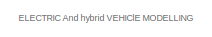
[diagram: root canvas - part 1/2, top left region]
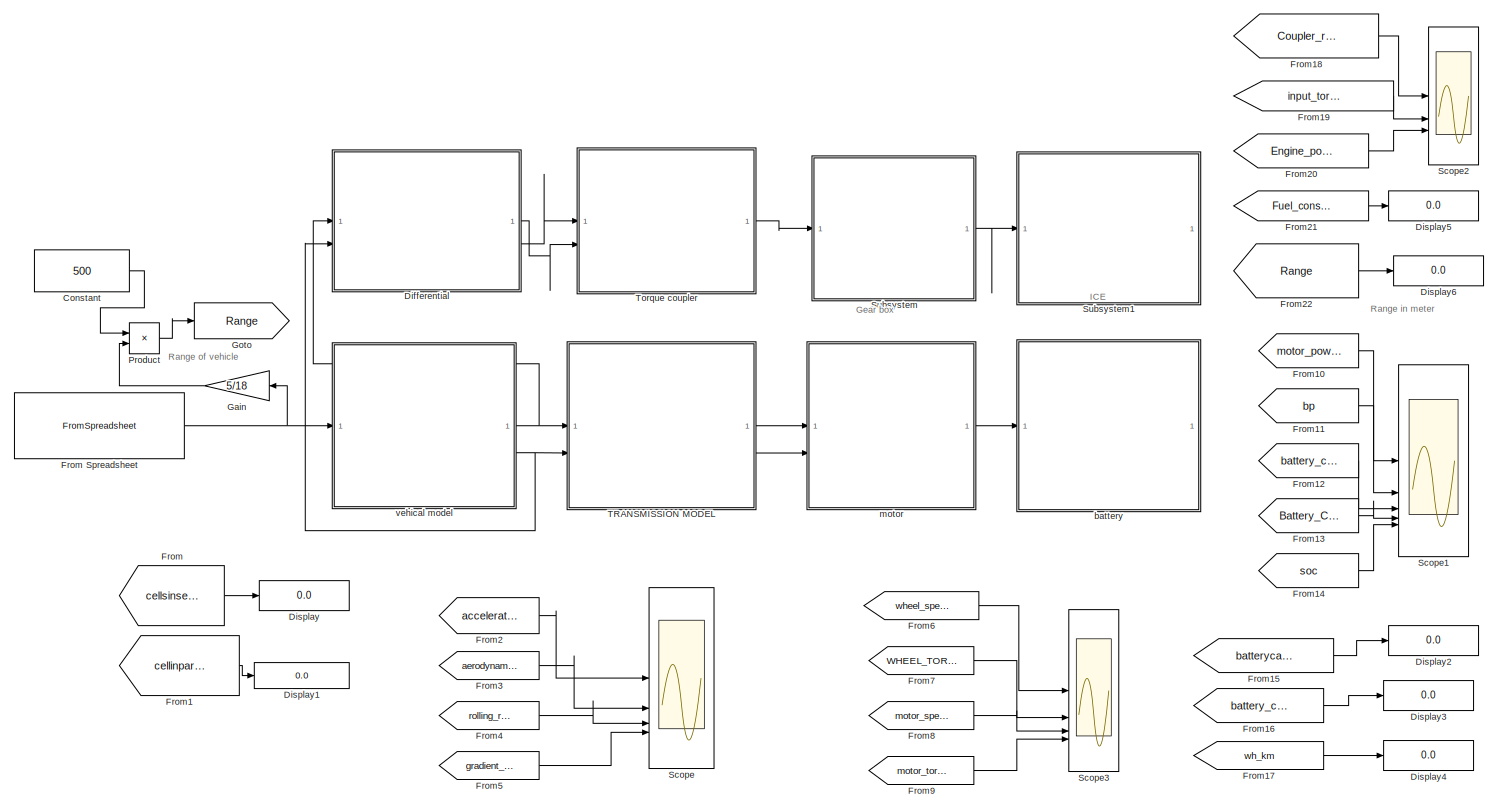
[diagram: root canvas - part 2/2, most of the canvas]
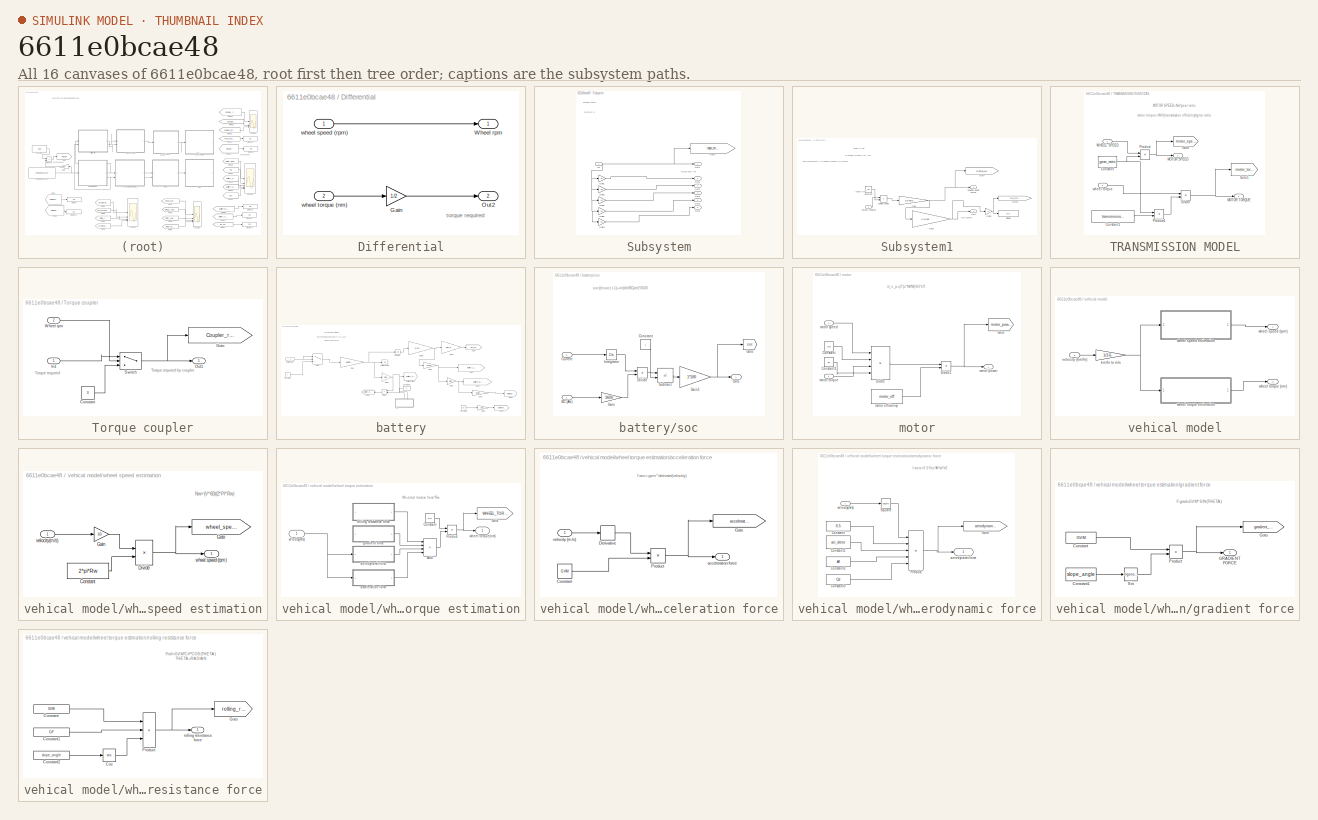
[diagram: thumbnail index - all 16 canvases of the model, root first then tree order]
MODEL slx_6611e0bcae48
KIND model
CONFIG AbsTol = auto
CONFIG EnableMultiTasking = off
CONFIG FixedStep = auto
CONFIG MaxStep = auto
CONFIG MinStep = auto
CONFIG RelTol = 1e-3
CONFIG SampleTimeConstraint = Unconstrained
CONFIG SolverName = VariableStepAuto
CONFIG StartTime = 0.0
CONFIG StopTime = 500
WORKSPACE source: MATLAB code (in-file)
WORKSPACE Rw = 0.32
WORKSPACE GVM = 2000
WORKSPACE GVW = GVM*9.8  (= 19600)
WORKSPACE CrF = 0.014
WORKSPACE slope_angle = 0
WORKSPACE Af = 2.2
WORKSPACE Cd = 0.25
WORKSPACE gear_ratio = 9
WORKSPACE transmission_efficiency = 0.95
WORKSPACE motor_eff = 0.94
WORKSPACE motorcontroller_eff = 0.95
WORKSPACE Bv = 72
WORKSPACE Cv = 3.6
WORKSPACE cellcapacity = 25
WORKSPACE lap_distance = 0.787
WORKSPACE range = 20
WORKSPACE time = 60
WORKSPACE air_dens = 1.225
WORKSPACE We = 3000
WORKSPACE Engine_eff = 85
BLOCK [Constant] Constant
  Value = 500
BLOCK [SubSystem] Differential
BLOCK [Gain] Differential/Gain
  Gain = 1/2
BLOCK [Outport] Differential/Out2
  Port = 2
BLOCK [Outport] Differential/Wheel rpm
BLOCK [Inport] Differential/wheel speed (rpm)
BLOCK [Inport] Differential/wheel torque (nm)
  Port = 2
BLOCK [Display] Display
  Decimation = 1
BLOCK [Display] Display1
  Decimation = 1
BLOCK [Display] Display2
  Decimation = 1
BLOCK [Display] Display3
  Decimation = 1
BLOCK [Display] Display4
  Decimation = 1
BLOCK [Display] Display5
  Decimation = 1
BLOCK [Display] Display6
  Decimation = 1
BLOCK [From] From
  GotoTag = cellsinseries
  TagVisibility = global
BLOCK [FromSpreadsheet] From Spreadsheet
  FileName = Drive cycle.xlsx
BLOCK [From] From1
  GotoTag = cellinparallel
  TagVisibility = global
BLOCK [From] From10
  GotoTag = motor_power
  TagVisibility = global
BLOCK [From] From11
  GotoTag = bp
  TagVisibility = global
BLOCK [From] From12
  GotoTag = battery_current
  TagVisibility = global
BLOCK [From] From13
  GotoTag = Battery_C_rate
  TagVisibility = global
BLOCK [From] From14
  GotoTag = soc
  TagVisibility = global
BLOCK [From] From15
  GotoTag = batterycapacity_amperehour
  TagVisibility = global
BLOCK [From] From16
  GotoTag = battery_capacity_wh
  TagVisibility = global
BLOCK [From] From17
  GotoTag = wh_km
  TagVisibility = global
BLOCK [From] From18
  GotoTag = Coupler_required_torque
  TagVisibility = global
BLOCK [From] From19
  GotoTag = input_torque_required
  TagVisibility = global
BLOCK [From] From2
  GotoTag = acceleration_force
  TagVisibility = global
BLOCK [From] From20
  GotoTag = Engine_power_output
  TagVisibility = global
BLOCK [From] From21
  GotoTag = Fuel_consumption
  TagVisibility = global
BLOCK [From] From22
  GotoTag = Range
  TagVisibility = global
BLOCK [From] From3
  GotoTag = aerodynamic_force
  TagVisibility = global
BLOCK [From] From4
  GotoTag = rolling_resistance
  TagVisibility = global
BLOCK [From] From5
  GotoTag = gradient_force
  TagVisibility = global
BLOCK [From] From6
  GotoTag = wheel_speed
  TagVisibility = global
BLOCK [From] From7
  GotoTag = WHEEL_TORQUE
  TagVisibility = global
BLOCK [From] From8
  GotoTag = motor_speed
  TagVisibility = global
BLOCK [From] From9
  GotoTag = motor_torque
  TagVisibility = global
BLOCK [Gain] Gain
  Gain = 5/18
  NameLocation = top
BLOCK [Goto] Goto
  GotoTag = Range
  TagVisibility = global
BLOCK [Product] Product
BLOCK [Scope] Scope
  Floating = off
  NumInputPorts = 4
  ScopeSpecificationString = Simulink.scopes.TimeScopeBlockCfg('CurrentConfiguration', extmgr.ConfigurationSet(extmgr.Configuration('Core','General UI',true),extmgr.Configuration('Core','Source UI',true),extmgr.Configuration('Sources','WiredSimulink',true),extmgr.Configuration('Visuals','Time Domain',true,'SerializedDisplays',{struct('MinYLimReal','-6888.9465','MaxYLimReal','6453.64353','YLabelReal','','MinYLimMag','  0.00000...<+3718ch>
BLOCK [Scope] Scope1
  Floating = off
  NumInputPorts = 5
  ScopeSpecificationString = Simulink.scopes.TimeScopeBlockCfg('CurrentConfiguration', extmgr.ConfigurationSet(extmgr.Configuration('Core','General UI',true,'FigureColor',[0.992156862745098 0.917647058823529 0.796078431372549]),extmgr.Configuration('Core','Source UI',true),extmgr.Configuration('Sources','WiredSimulink',true,'DataLoggingVariableName','ScopeData1'),extmgr.Configuration('Visuals','Time Domain',true,'PlotType','L...<+5524ch>
BLOCK [Scope] Scope2
  Floating = off
  NumInputPorts = 3
  ScopeSpecificationString = Simulink.scopes.TimeScopeBlockCfg('CurrentConfiguration', extmgr.ConfigurationSet(extmgr.Configuration('Core','General UI',true),extmgr.Configuration('Core','Source UI',true),extmgr.Configuration('Sources','WiredSimulink',true,'DataLoggingVariableName','ScopeData1'),extmgr.Configuration('Visuals','Time Domain',true,'SerializedDisplays',{struct('MinYLimReal','-936.14474','MaxYLimReal','985.46448','...<+2951ch>
BLOCK [Scope] Scope3
  Floating = off
  NumInputPorts = 4
  ScopeSpecificationString = Simulink.scopes.TimeScopeBlockCfg('CurrentConfiguration', extmgr.ConfigurationSet(extmgr.Configuration('Core','General UI',true),extmgr.Configuration('Core','Source UI',true),extmgr.Configuration('Sources','WiredSimulink',true,'DataLoggingVariableName','ScopeData3'),extmgr.Configuration('Visuals','Time Domain',true,'SerializedDisplays',{struct('MinYLimReal','-212.41382','MaxYLimReal','1497.25842',...<+3762ch>
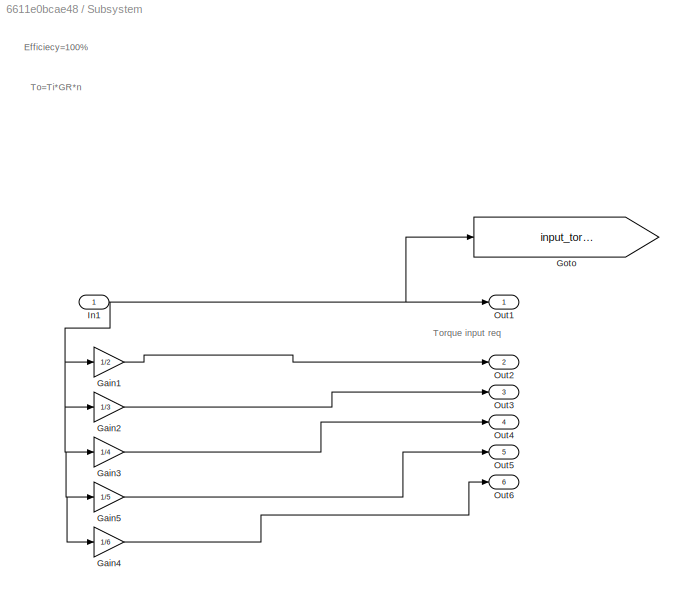
BLOCK [SubSystem] Subsystem
BLOCK [Gain] Subsystem/Gain1
  Gain = 1/2
BLOCK [Gain] Subsystem/Gain2
  Gain = 1/3
BLOCK [Gain] Subsystem/Gain3
  Gain = 1/4
BLOCK [Gain] Subsystem/Gain4
  Gain = 1/6
BLOCK [Gain] Subsystem/Gain5
  Gain = 1/5
BLOCK [Goto] Subsystem/Goto
  GotoTag = input_torque_required
  TagVisibility = global
BLOCK [Inport] Subsystem/In1
BLOCK [Outport] Subsystem/Out1
BLOCK [Outport] Subsystem/Out2
  Port = 2
BLOCK [Outport] Subsystem/Out3
  Port = 3
BLOCK [Outport] Subsystem/Out4
  Port = 4
BLOCK [Outport] Subsystem/Out5
  Port = 5
BLOCK [Outport] Subsystem/Out6
  Port = 6
BLOCK [SubSystem] Subsystem1
BLOCK [Constant] Subsystem1/Constant
  Value = We
BLOCK [Display] Subsystem1/Display
  Decimation = 1
BLOCK [Product] Subsystem1/Engine power
BLOCK [Outport] Subsystem1/Engoine power output
  Port = 2
BLOCK [Gain] Subsystem1/Gain
  Gain = 1/Engine_eff %
BLOCK [Gain] Subsystem1/Gain1
  Gain = 1/(Engine_eff*0.0122225)
BLOCK [Gain] Subsystem1/Gain2
  Gain = -1
BLOCK [Goto] Subsystem1/Goto
  GotoTag = Engine_power_output
  TagVisibility = global
BLOCK [Goto] Subsystem1/Goto1
  GotoTag = Fuel_consumption
  TagVisibility = global
BLOCK [Outport] Subsystem1/Out1
BLOCK [Inport] Subsystem1/Torque required
BLOCK [SubSystem] TRANSMISSION MODEL
BLOCK [Constant] TRANSMISSION MODEL/Constant
  Value = gear_ratio
BLOCK [Constant] TRANSMISSION MODEL/Constant1
  Value = transmission_efficiency
BLOCK [Product] TRANSMISSION MODEL/Divide
  Inputs = */
BLOCK [Goto] TRANSMISSION MODEL/Goto
  GotoTag = motor_speed
  TagVisibility = global
BLOCK [Goto] TRANSMISSION MODEL/Goto1
  GotoTag = motor_torque
  TagVisibility = global
BLOCK [Outport] TRANSMISSION MODEL/MOTOR SPEED 
BLOCK [Outport] TRANSMISSION MODEL/MOTOR TORQUE
  Port = 2
BLOCK [Product] TRANSMISSION MODEL/Product
BLOCK [Product] TRANSMISSION MODEL/Product1
BLOCK [Inport] TRANSMISSION MODEL/WHEEL SPEED
BLOCK [Inport] TRANSMISSION MODEL/wheel torque
  Port = 2
BLOCK [SubSystem] Torque coupler
BLOCK [Constant] Torque coupler/Constant
  Value = 0
BLOCK [Goto] Torque coupler/Goto
  GotoTag = Coupler_required_torque
  TagVisibility = global
BLOCK [Inport] Torque coupler/In1
BLOCK [Outport] Torque coupler/Out1
BLOCK [Switch] Torque coupler/Switch
  Criteria = u2 > Threshold
  InputSameDT = off
  SaturateOnIntegerOverflow = off
  Threshold = 20
BLOCK [Inport] Torque coupler/Wheel rpm
  Port = 2
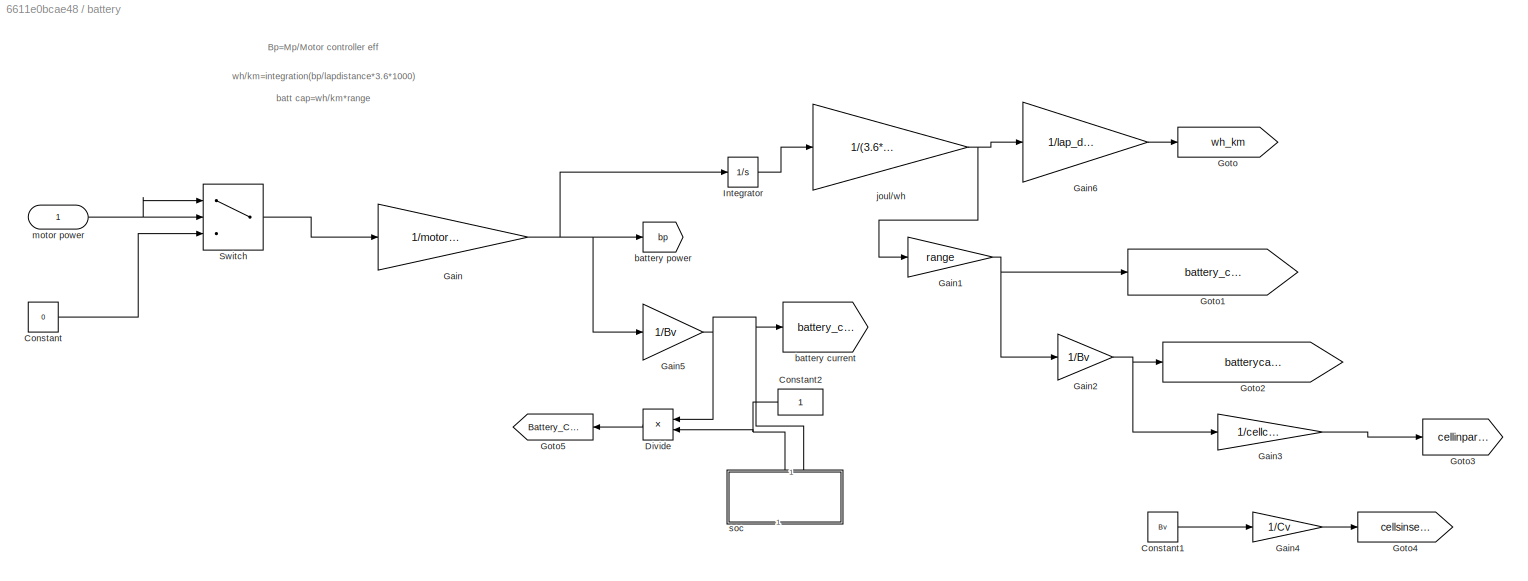
BLOCK [SubSystem] battery
BLOCK [Constant] battery/Constant
  Value = 0
BLOCK [Constant] battery/Constant1
  Value = Bv
BLOCK [Constant] battery/Constant2
  NameLocation = top
BLOCK [Product] battery/Divide
  Inputs = */
  NameLocation = top
BLOCK [Gain] battery/Gain
  Gain = 1/motorcontroller_eff
BLOCK [Gain] battery/Gain1
  Gain = range
BLOCK [Gain] battery/Gain2
  Gain = 1/Bv
BLOCK [Gain] battery/Gain3
  Gain = 1/cellcapacity
BLOCK [Gain] battery/Gain4
  Gain = 1/Cv
BLOCK [Gain] battery/Gain5
  Gain = 1/Bv
BLOCK [Gain] battery/Gain6
  Gain = 1/lap_distance
BLOCK [Goto] battery/Goto
  GotoTag = wh_km
  TagVisibility = global
BLOCK [Goto] battery/Goto1
  GotoTag = battery_capacity_wh
  TagVisibility = global
BLOCK [Goto] battery/Goto2
  GotoTag = batterycapacity_amperehour
  TagVisibility = global
BLOCK [Goto] battery/Goto3
  GotoTag = cellinparallel
  TagVisibility = global
BLOCK [Goto] battery/Goto4
  GotoTag = cellsinseries
  TagVisibility = global
BLOCK [Goto] battery/Goto5
  GotoTag = Battery_C_rate
  NameLocation = top
  TagVisibility = global
BLOCK [Integrator] battery/Integrator
BLOCK [Switch] battery/Switch
  Criteria = u2 > Threshold
  InputSameDT = off
  SaturateOnIntegerOverflow = off
BLOCK [Goto] battery/battery current
  GotoTag = battery_current
  TagVisibility = global
BLOCK [Goto] battery/battery power
  GotoTag = bp
  TagVisibility = global
BLOCK [Gain] battery/joul//wh
  Gain = 1/(3.6*1000)
BLOCK [Inport] battery/motor power
BLOCK [SubSystem] battery/soc
  NameLocation = right
  PortSchema = {"entries":[{"content":{"sides":[{"content":{},"type":"ConnectorPlacement.EquallySpacedRectSide","uuid":"525a52db-42a3-4186-9b86-1a9c3b979e09"},{"content":{"connectorIds":["In1","In2","Out1"],"side":"RIGHT"},"type":"ConnectorPlacement.EquallySpacedRectSide","uuid":"4671c8ab-09a3-4098-81cc-cb8b0c0d9d98"},{"content":{"side":"TOP"},"type":"ConnectorPlacement.EquallySpacedRectSide","uuid":"72cae99d-a4...<+212ch>
BLOCK [Inport] battery/soc/BC (Ah)
BLOCK [Constant] battery/soc/Constant
BLOCK [Inport] battery/soc/Current
  Port = 2
BLOCK [Product] battery/soc/Divide
  Inputs = */
BLOCK [Gain] battery/soc/Gain
  Gain = 3600
BLOCK [Gain] battery/soc/Gain1
  Gain = 1*100
BLOCK [Goto] battery/soc/Goto
  GotoTag = soc
  TagVisibility = global
BLOCK [Integrator] battery/soc/Integrator
BLOCK [Outport] battery/soc/Out1
BLOCK [Sum] battery/soc/Subtract
  IconShape = rectangular
  Inputs = +-
BLOCK [SubSystem] motor
BLOCK [Constant] motor/Constant
  Value = 2*pi
BLOCK [Constant] motor/Constant1
  Value = 60
BLOCK [Product] motor/Divide
  Inputs = ***/
BLOCK [Product] motor/Divide1
  Inputs = */
BLOCK [Goto] motor/Goto
  GotoTag = motor_power
  TagVisibility = global
BLOCK [Constant] motor/motor efficiency
  Value = motor_eff
BLOCK [Outport] motor/motor power
BLOCK [Inport] motor/motor speed
BLOCK [Inport] motor/motor torque
  Port = 2
BLOCK [SubSystem] vehical model
BLOCK [Gain] vehical model/km//hr to m//s
  Gain = 1/3.6
BLOCK [Inport] vehical model/velocity (km//hr)
BLOCK [Outport] vehical model/wheel speed (rpm)
BLOCK [SubSystem] vehical model/wheel speed estimation
BLOCK [Constant] vehical model/wheel speed estimation/Constant
  Value = 2*pi*Rw
BLOCK [Product] vehical model/wheel speed estimation/Divide
  Inputs = */
BLOCK [Gain] vehical model/wheel speed estimation/Gain
  Gain = 60
BLOCK [Goto] vehical model/wheel speed estimation/Goto
  GotoTag = wheel_speed
  TagVisibility = global
BLOCK [Inport] vehical model/wheel speed estimation/velocity(m//s)
BLOCK [Outport] vehical model/wheel speed estimation/wheel speed (rpm)
BLOCK [Outport] vehical model/wheel torque (nm)
  Port = 2
BLOCK [SubSystem] vehical model/wheel torque estimation
BLOCK [Sum] vehical model/wheel torque estimation/Add
  IconShape = rectangular
  Inputs = ++++
BLOCK [Constant] vehical model/wheel torque estimation/Constant
  Value = Rw
BLOCK [Goto] vehical model/wheel torque estimation/Goto
  GotoTag = WHEEL_TORQUE
  TagVisibility = global
BLOCK [Product] vehical model/wheel torque estimation/Product
BLOCK [SubSystem] vehical model/wheel torque estimation/acceleration force
BLOCK [Constant] vehical model/wheel torque estimation/acceleration force/Constant
  Value = GVM
BLOCK [Derivative] vehical model/wheel torque estimation/acceleration force/Derivative
BLOCK [Goto] vehical model/wheel torque estimation/acceleration force/Goto
  GotoTag = acceleration_force
  TagVisibility = global
BLOCK [Product] vehical model/wheel torque estimation/acceleration force/Product
BLOCK [Outport] vehical model/wheel torque estimation/acceleration force/acceleration force
BLOCK [Inport] vehical model/wheel torque estimation/acceleration force/velocity (m//s)
BLOCK [SubSystem] vehical model/wheel torque estimation/aerodynamic force
BLOCK [Constant] vehical model/wheel torque estimation/aerodynamic force/Constant
  Value = 0.5
BLOCK [Constant] vehical model/wheel torque estimation/aerodynamic force/Constant1
  Value = air_dens
BLOCK [Constant] vehical model/wheel torque estimation/aerodynamic force/Constant2
  Value = Af
BLOCK [Constant] vehical model/wheel torque estimation/aerodynamic force/Constant3
  Value = Cd
BLOCK [Goto] vehical model/wheel torque estimation/aerodynamic force/Goto
  GotoTag = aerodynamic_force
  TagVisibility = global
BLOCK [Product] vehical model/wheel torque estimation/aerodynamic force/Product
  Inputs = 5
BLOCK [Math] vehical model/wheel torque estimation/aerodynamic force/Square
  Operator = square
BLOCK [Outport] vehical model/wheel torque estimation/aerodynamic force/aerodynamic force
BLOCK [Inport] vehical model/wheel torque estimation/aerodynamic force/velocity(m//s)
BLOCK [SubSystem] vehical model/wheel torque estimation/gradient force
BLOCK [Constant] vehical model/wheel torque estimation/gradient force/Constant
  Value = GVM
BLOCK [Constant] vehical model/wheel torque estimation/gradient force/Constant1
  Value = slope_angle
BLOCK [Outport] vehical model/wheel torque estimation/gradient force/GRADIENT FORCE
BLOCK [Goto] vehical model/wheel torque estimation/gradient force/Goto
  GotoTag = gradient_force
  TagVisibility = global
BLOCK [Product] vehical model/wheel torque estimation/gradient force/Product
BLOCK [Trigonometry] vehical model/wheel torque estimation/gradient force/Sin
BLOCK [SubSystem] vehical model/wheel torque estimation/rolling resistance force
BLOCK [Constant] vehical model/wheel torque estimation/rolling resistance force/Constant
  Value = GVW
BLOCK [Constant] vehical model/wheel torque estimation/rolling resistance force/Constant1
  Value = CrF
BLOCK [Constant] vehical model/wheel torque estimation/rolling resistance force/Constant2
  Value = slope_angle
BLOCK [Trigonometry] vehical model/wheel torque estimation/rolling resistance force/Cos
  Operator = cos
BLOCK [Goto] vehical model/wheel torque estimation/rolling resistance force/Goto
  GotoTag = rolling_resistance
  TagVisibility = global
BLOCK [Product] vehical model/wheel torque estimation/rolling resistance force/Product
  Inputs = 3
BLOCK [Outport] vehical model/wheel torque estimation/rolling resistance force/rolling resistance force
BLOCK [Inport] vehical model/wheel torque estimation/velocity(m//s)
BLOCK [Outport] vehical model/wheel torque estimation/wheel torque(nm)
ANNOTATION (root): ELECTRIC And hybrid VEHIClE MODELLING
ANNOTATION (root): Gear box
ANNOTATION (root): ICE
ANNOTATION (root): Range in meter
ANNOTATION (root): Range of vehicle
ANNOTATION Differential: torque required
ANNOTATION Subsystem: Efficiecy=100%
ANNOTATION Subsystem: To=Ti*GR*n
ANNOTATION Subsystem: Torque input req
ANNOTATION Subsystem1: Fuel consumption = P/(Engine efficiency*0.0122225)
ANNOTATION Subsystem1: nf=Engine efficiency wrt fuel
ANNOTATION Subsystem1: power=Tr*we
ANNOTATION Subsystem1: Engine rpm
ANNOTATION Subsystem1: Fuel required
ANNOTATION TRANSMISSION MODEL: MOTOR SPEED=Nw*gear ratio
ANNOTATION TRANSMISSION MODEL: motor torque=Wt/(transmission efficiency*gear ratio
ANNOTATION Torque coupler: Torque required
ANNOTATION Torque coupler: Torque required by coupler
ANNOTATION battery: Bp=Mp/Motor controller eff
ANNOTATION battery: batt cap=wh/km*range
ANNOTATION battery: wh/km=integration(bp/lapdistance*3.6*1000)
ANNOTATION battery/soc: soc(t)=soc( t-1)+int(Idt/BC(ah)*3600
ANNOTATION motor: m_u_p=(2*pi*Ms*Mt)/60*eff
ANNOTATION vehical model/wheel speed estimation: Nw=(V*60)/(2*PI*Rw)
ANNOTATION vehical model/wheel torque estimation: Wt=total tractive force*Rw
ANNOTATION vehical model/wheel torque estimation/acceleration force: f acc=gvm*derivate(velocity )
ANNOTATION vehical model/wheel torque estimation/aerodynamic force: f aero=0.5*rho*Af*cd*v^2
ANNOTATION vehical model/wheel torque estimation/gradient force: F grad=GVM*SIN(THETA)
ANNOTATION vehical model/wheel torque estimation/rolling resistance force: Froll=GVM*CrF*COS(THETA) THETA=RADIAN
LINE Constant:1 -> Product:1
LINE Differential/Gain:1 -> Differential/Out2:1
LINE Differential/wheel speed (rpm):1 -> Differential/Wheel rpm:1
LINE Differential/wheel torque (nm):1 -> Differential/Gain:1
LINE Differential:1 -> Torque coupler:2
LINE Differential:2 -> Torque coupler:1
NET From Spreadsheet:1 -> Gain:1, vehical model:1
LINE From10:1 -> Scope1:1
LINE From11:1 -> Scope1:2
LINE From12:1 -> Scope1:3
LINE From13:1 -> Scope1:4
LINE From14:1 -> Scope1:5
LINE From15:1 -> Display2:1
LINE From16:1 -> Display3:1
LINE From17:1 -> Display4:1
LINE From18:1 -> Scope2:1
LINE From19:1 -> Scope2:2
LINE From1:1 -> Display1:1
LINE From20:1 -> Scope2:3
LINE From21:1 -> Display5:1
LINE From22:1 -> Display6:1
LINE From2:1 -> Scope:1
LINE From3:1 -> Scope:2
LINE From4:1 -> Scope:3
LINE From5:1 -> Scope:4
LINE From6:1 -> Scope3:1
LINE From7:1 -> Scope3:2
LINE From8:1 -> Scope3:3
LINE From9:1 -> Scope3:4
LINE From:1 -> Display:1
LINE Gain:1 -> Product:2
LINE Product:1 -> Goto:1
LINE Subsystem/Gain1:1 -> Subsystem/Out2:1
LINE Subsystem/Gain2:1 -> Subsystem/Out3:1
LINE Subsystem/Gain3:1 -> Subsystem/Out4:1
LINE Subsystem/Gain4:1 -> Subsystem/Out6:1
LINE Subsystem/Gain5:1 -> Subsystem/Out5:1
NET Subsystem/In1:1 -> Subsystem/Gain1:1, Subsystem/Gain2:1, Subsystem/Gain3:1, Subsystem/Gain4:1, Subsystem/Gain5:1, Subsystem/Goto:1, Subsystem/Out1:1
LINE Subsystem1/Constant:1 -> Subsystem1/Engine power:2
LINE Subsystem1/Engine power:1 -> Subsystem1/Gain:1
NET Subsystem1/Gain1:1 -> Subsystem1/Gain2:1, Subsystem1/Out1:1
NET Subsystem1/Gain2:1 -> Subsystem1/Display:1, Subsystem1/Goto1:1
NET Subsystem1/Gain:1 -> Subsystem1/Engoine power output:1, Subsystem1/Gain1:1, Subsystem1/Goto:1
LINE Subsystem1/Torque required:1 -> Subsystem1/Engine power:1
LINE Subsystem:1 -> Subsystem1:1
LINE TRANSMISSION MODEL/Constant1:1 -> TRANSMISSION MODEL/Product1:2
NET TRANSMISSION MODEL/Constant:1 -> TRANSMISSION MODEL/Product1:1, TRANSMISSION MODEL/Product:2
NET TRANSMISSION MODEL/Divide:1 -> TRANSMISSION MODEL/Goto1:1, TRANSMISSION MODEL/MOTOR TORQUE:1
LINE TRANSMISSION MODEL/Product1:1 -> TRANSMISSION MODEL/Divide:2
NET TRANSMISSION MODEL/Product:1 -> TRANSMISSION MODEL/Goto:1, TRANSMISSION MODEL/MOTOR SPEED :1
LINE TRANSMISSION MODEL/WHEEL SPEED:1 -> TRANSMISSION MODEL/Product:1
LINE TRANSMISSION MODEL/wheel torque:1 -> TRANSMISSION MODEL/Divide:1
LINE TRANSMISSION MODEL:1 -> motor:1
LINE TRANSMISSION MODEL:2 -> motor:2
LINE Torque coupler/Constant:1 -> Torque coupler/Switch:3
LINE Torque coupler/In1:1 -> Torque coupler/Switch:1
NET Torque coupler/Switch:1 -> Torque coupler/Goto:1, Torque coupler/Out1:1
LINE Torque coupler/Wheel rpm:1 -> Torque coupler/Switch:2
LINE Torque coupler:1 -> Subsystem:1
LINE battery/Constant1:1 -> battery/Gain4:1
NET battery/Constant2:1 -> battery/Divide:2, battery/soc:1
LINE battery/Constant:1 -> battery/Switch:3
LINE battery/Divide:1 -> battery/Goto5:1
NET battery/Gain1:1 -> battery/Gain2:1, battery/Goto1:1
NET battery/Gain2:1 -> battery/Gain3:1, battery/Goto2:1
LINE battery/Gain3:1 -> battery/Goto3:1
LINE battery/Gain4:1 -> battery/Goto4:1
NET battery/Gain5:1 -> battery/Divide:1, battery/battery current:1, battery/soc:2
LINE battery/Gain6:1 -> battery/Goto:1
NET battery/Gain:1 -> battery/Gain5:1, battery/Integrator:1, battery/battery power:1
LINE battery/Integrator:1 -> battery/joul//wh:1
LINE battery/Switch:1 -> battery/Gain:1
NET battery/joul//wh:1 -> battery/Gain1:1, battery/Gain6:1
NET battery/motor power:1 -> battery/Switch:1, battery/Switch:2
LINE battery/soc/BC (Ah):1 -> battery/soc/Gain:1
LINE battery/soc/Constant:1 -> battery/soc/Subtract:1
LINE battery/soc/Current:1 -> battery/soc/Integrator:1
LINE battery/soc/Divide:1 -> battery/soc/Subtract:2
NET battery/soc/Gain1:1 -> battery/soc/Goto:1, battery/soc/Out1:1
LINE battery/soc/Gain:1 -> battery/soc/Divide:2
LINE battery/soc/Integrator:1 -> battery/soc/Divide:1
LINE battery/soc/Subtract:1 -> battery/soc/Gain1:1
LINE motor/Constant1:1 -> motor/Divide:4
LINE motor/Constant:1 -> motor/Divide:2
NET motor/Divide1:1 -> motor/Goto:1, motor/motor power:1
LINE motor/Divide:1 -> motor/Divide1:1
LINE motor/motor efficiency:1 -> motor/Divide1:2
LINE motor/motor speed:1 -> motor/Divide:1
LINE motor/motor torque:1 -> motor/Divide:3
LINE motor:1 -> battery:1
NET vehical model/km//hr to m//s:1 -> vehical model/wheel speed estimation:1, vehical model/wheel torque estimation:1
LINE vehical model/velocity (km//hr):1 -> vehical model/km//hr to m//s:1
LINE vehical model/wheel speed estimation/Constant:1 -> vehical model/wheel speed estimation/Divide:2
NET vehical model/wheel speed estimation/Divide:1 -> vehical model/wheel speed estimation/Goto:1, vehical model/wheel speed estimation/wheel speed (rpm):1
LINE vehical model/wheel speed estimation/Gain:1 -> vehical model/wheel speed estimation/Divide:1
LINE vehical model/wheel speed estimation/velocity(m//s):1 -> vehical model/wheel speed estimation/Gain:1
LINE vehical model/wheel speed estimation:1 -> vehical model/wheel speed (rpm):1
LINE vehical model/wheel torque estimation/Add:1 -> vehical model/wheel torque estimation/Product:2
LINE vehical model/wheel torque estimation/Constant:1 -> vehical model/wheel torque estimation/Product:1
NET vehical model/wheel torque estimation/Product:1 -> vehical model/wheel torque estimation/Goto:1, vehical model/wheel torque estimation/wheel torque(nm):1
LINE vehical model/wheel torque estimation/acceleration force/Constant:1 -> vehical model/wheel torque estimation/acceleration force/Product:2
LINE vehical model/wheel torque estimation/acceleration force/Derivative:1 -> vehical model/wheel torque estimation/acceleration force/Product:1
NET vehical model/wheel torque estimation/acceleration force/Product:1 -> vehical model/wheel torque estimation/acceleration force/Goto:1, vehical model/wheel torque estimation/acceleration force/acceleration force:1
LINE vehical model/wheel torque estimation/acceleration force/velocity (m//s):1 -> vehical model/wheel torque estimation/acceleration force/Derivative:1
LINE vehical model/wheel torque estimation/acceleration force:1 -> vehical model/wheel torque estimation/Add:4
LINE vehical model/wheel torque estimation/aerodynamic force/Constant1:1 -> vehical model/wheel torque estimation/aerodynamic force/Product:3
LINE vehical model/wheel torque estimation/aerodynamic force/Constant2:1 -> vehical model/wheel torque estimation/aerodynamic force/Product:4
LINE vehical model/wheel torque estimation/aerodynamic force/Constant3:1 -> vehical model/wheel torque estimation/aerodynamic force/Product:5
LINE vehical model/wheel torque estimation/aerodynamic force/Constant:1 -> vehical model/wheel torque estimation/aerodynamic force/Product:2
NET vehical model/wheel torque estimation/aerodynamic force/Product:1 -> vehical model/wheel torque estimation/aerodynamic force/Goto:1, vehical model/wheel torque estimation/aerodynamic force/aerodynamic force:1
LINE vehical model/wheel torque estimation/aerodynamic force/Square:1 -> vehical model/wheel torque estimation/aerodynamic force/Product:1
LINE vehical model/wheel torque estimation/aerodynamic force/velocity(m//s):1 -> vehical model/wheel torque estimation/aerodynamic force/Square:1
LINE vehical model/wheel torque estimation/aerodynamic force:1 -> vehical model/wheel torque estimation/Add:3
LINE vehical model/wheel torque estimation/gradient force/Constant1:1 -> vehical model/wheel torque estimation/gradient force/Sin:1
LINE vehical model/wheel torque estimation/gradient force/Constant:1 -> vehical model/wheel torque estimation/gradient force/Product:1
NET vehical model/wheel torque estimation/gradient force/Product:1 -> vehical model/wheel torque estimation/gradient force/GRADIENT FORCE:1, vehical model/wheel torque estimation/gradient force/Goto:1
LINE vehical model/wheel torque estimation/gradient force/Sin:1 -> vehical model/wheel torque estimation/gradient force/Product:2
LINE vehical model/wheel torque estimation/gradient force:1 -> vehical model/wheel torque estimation/Add:2
LINE vehical model/wheel torque estimation/rolling resistance force/Constant1:1 -> vehical model/wheel torque estimation/rolling resistance force/Product:2
LINE vehical model/wheel torque estimation/rolling resistance force/Constant2:1 -> vehical model/wheel torque estimation/rolling resistance force/Cos:1
LINE vehical model/wheel torque estimation/rolling resistance force/Constant:1 -> vehical model/wheel torque estimation/rolling resistance force/Product:1
LINE vehical model/wheel torque estimation/rolling resistance force/Cos:1 -> vehical model/wheel torque estimation/rolling resistance force/Product:3
NET vehical model/wheel torque estimation/rolling resistance force/Product:1 -> vehical model/wheel torque estimation/rolling resistance force/Goto:1, vehical model/wheel torque estimation/rolling resistance force/rolling resistance force:1
LINE vehical model/wheel torque estimation/rolling resistance force:1 -> vehical model/wheel torque estimation/Add:1
NET vehical model/wheel torque estimation/velocity(m//s):1 -> vehical model/wheel torque estimation/acceleration force:1, vehical model/wheel torque estimation/aerodynamic force:1
LINE vehical model/wheel torque estimation:1 -> vehical model/wheel torque (nm):1
NET vehical model:1 -> Differential:1, TRANSMISSION MODEL:1
NET vehical model:2 -> Differential:2, TRANSMISSION MODEL:2
note: NET lines group one-source signal fan-out (src -> all destinations, sorted); 1:1 wires keep LINE
